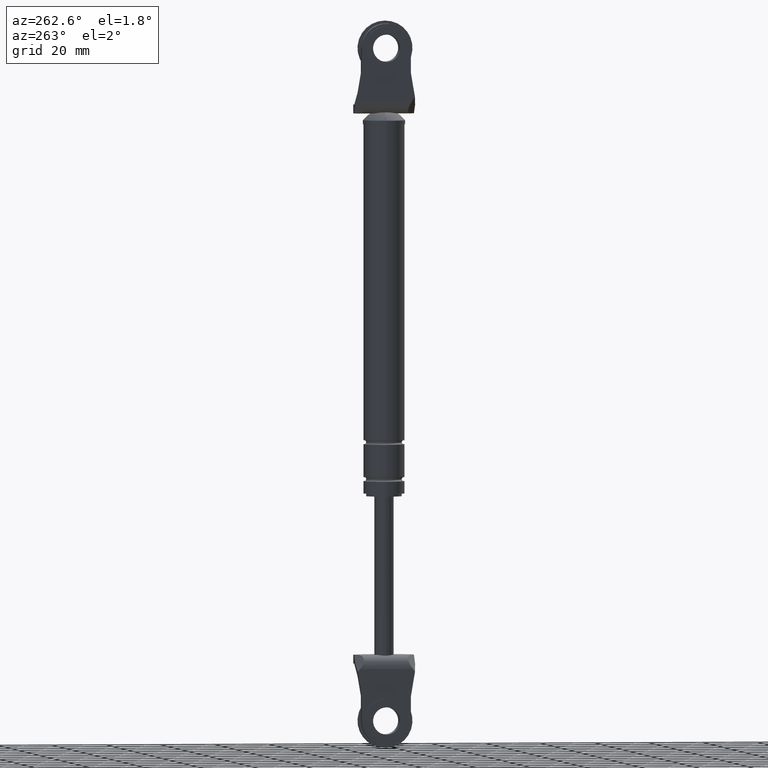
[diagram: clean part render]
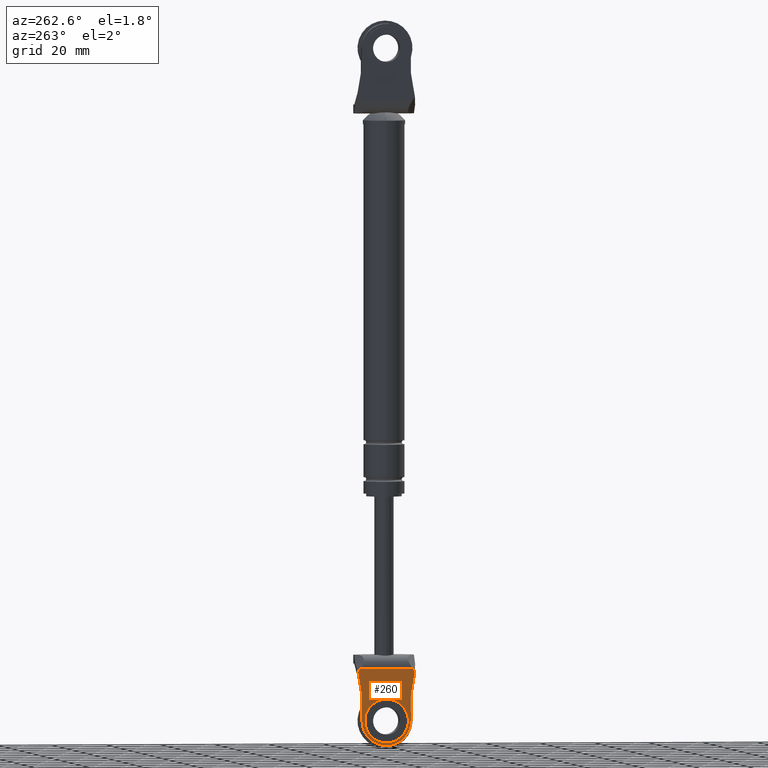
[diagram: same view with one face highlighted and labeled with its STEP entity id]
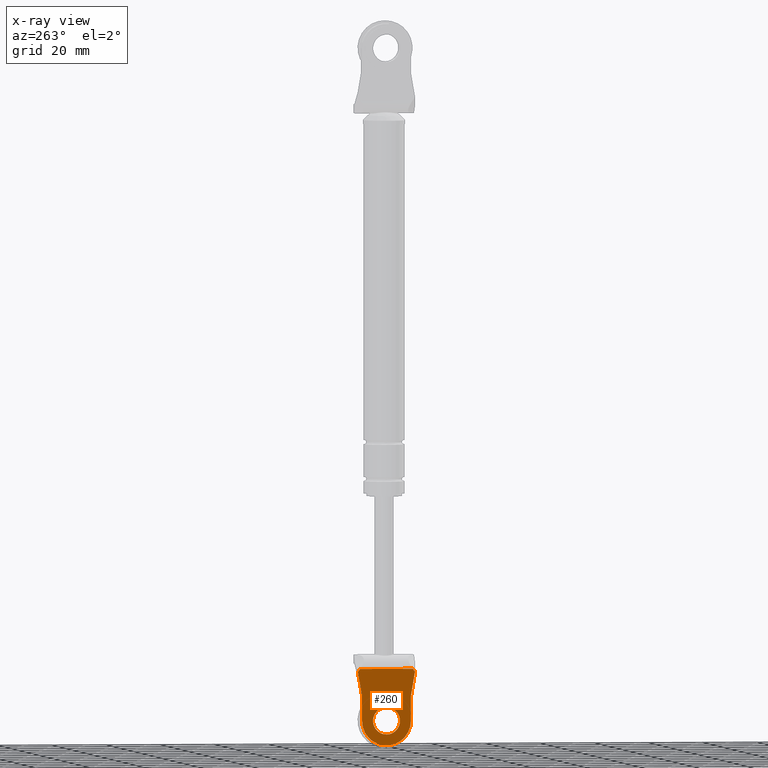
[diagram: x-ray of the same camera — body ghosted, the highlighted face saturated]
A machine part, auxiliary view. The second image highlights one B-rep face of the part: STEP entity #260.
The next image is the same camera in x-ray: the body ghosted, the highlighted face saturated — about 0% of this face is hidden behind the body in this view.
In plain terms, the highlighted planar face has unit normal (1, 0, 0).
Its self-contained STEP definition (entity closure, byte-faithful):
#260=ADVANCED_FACE('',(#857,#858),#856,.F.);
#856=PLANE('',#1477);
#857=FACE_OUTER_BOUND('',#1478,.T.);
#858=FACE_BOUND('',#1479,.T.);
#1474=CARTESIAN_POINT('',(-9.41369854265E-016,1.26204346411E+001,2.24200000000E+002));
#1475=DIRECTION('',(1.00000000000E+000,0.00000000000E+000,-0.00000000000E+000));
#1476=DIRECTION('',(0.00000000000E+000,0.00000000000E+000,1.00000000000E+000));
#1477=AXIS2_PLACEMENT_3D('',#1474,#1475,#1476);
#1478=EDGE_LOOP('',(#1868,#1869,#1870,#1871,#1872,#1873,#1874,#1875));
#1479=EDGE_LOOP('',(#1876,#1877));
#1868=ORIENTED_EDGE('',*,*,#2132,.F.);
#1869=ORIENTED_EDGE('',*,*,#2133,.F.);
#1870=ORIENTED_EDGE('',*,*,#2134,.F.);
#1871=ORIENTED_EDGE('',*,*,#2135,.T.);
#1872=ORIENTED_EDGE('',*,*,#2136,.F.);
#1873=ORIENTED_EDGE('',*,*,#2137,.F.);
#1874=ORIENTED_EDGE('',*,*,#2138,.T.);
#1875=ORIENTED_EDGE('',*,*,#2139,.T.);
#1876=ORIENTED_EDGE('',*,*,#2140,.F.);
#1877=ORIENTED_EDGE('',*,*,#2141,.F.);
#2132=EDGE_CURVE('',#3104,#3105,#3106,.T.);
#2133=EDGE_CURVE('',#3112,#3104,#3113,.T.);
#2134=EDGE_CURVE('',#3119,#3112,#3120,.T.);
#2135=EDGE_CURVE('',#3119,#3126,#3127,.T.);
#2136=EDGE_CURVE('',#3133,#3126,#3134,.T.);
#2137=EDGE_CURVE('',#3140,#3133,#3141,.T.);
#2138=EDGE_CURVE('',#3140,#3147,#3148,.T.);
#2139=EDGE_CURVE('',#3147,#3105,#3154,.T.);
#2140=EDGE_CURVE('',#3160,#3161,#3162,.T.);
#2141=EDGE_CURVE('',#3161,#3160,#3168,.T.);
#3104=VERTEX_POINT('',#4098);
#3105=VERTEX_POINT('',#4099);
#3106=LINE('',#4100,#4101);
#3112=VERTEX_POINT('',#4103);
#3113=LINE('',#4104,#4105);
#3119=VERTEX_POINT('',#4107);
#3120=LINE('',#4108,#4109);
#3126=VERTEX_POINT('',#4111);
#3127=CIRCLE('',#4115,9.00000000000E+000);
#3133=VERTEX_POINT('',#4116);
#3134=LINE('',#4117,#4118);
#3140=VERTEX_POINT('',#4120);
#3141=LINE('',#4121,#4122);
#3147=VERTEX_POINT('',#4124);
#3148=LINE('',#4125,#4126);
#3154=LINE('',#4128,#4129);
#3160=VERTEX_POINT('',#4131);
#3161=VERTEX_POINT('',#4132);
#3162=CIRCLE('',#4136,5.00000000000E+000);
#3168=CIRCLE('',#4140,5.00000000000E+000);
#4098=CARTESIAN_POINT('',(-1.10800257858E-013,-1.05170288675E+001,2.28049529682E+002));
#4099=CARTESIAN_POINT('',(-9.41369854265E-016,-9.73775804695E+000,2.27000000000E+002));
#4100=CARTESIAN_POINT('',(-9.41369854265E-016,-1.05170288675E+001,2.28049529682E+002));
#4101=VECTOR('',#4102,1.30720142448E+000);
#4102=DIRECTION('',(0.00000000000E+000,5.96136759022E-001,-8.02882908364E-001));
#4103=CARTESIAN_POINT('',(2.22044604925E-016,-9.00000000000E+000,2.37000000000E+002));
#4104=CARTESIAN_POINT('',(-9.41369854265E-016,-9.00000000000E+000,2.37000000000E+002));
#4105=VECTOR('',#4106,9.07812180505E+000);
#4106=DIRECTION('',(0.00000000000E+000,-1.67108230108E-001,-9.85938557634E-001));
#4107=CARTESIAN_POINT('',(2.22044604925E-016,-9.00000000000E+000,2.46000000000E+002));
#4108=CARTESIAN_POINT('',(-9.41369854265E-016,-9.00000000000E+000,2.46000000000E+002));
#4109=VECTOR('',#4110,9.00000000000E+000);
#4110=DIRECTION('',(0.00000000000E+000,0.00000000000E+000,-1.00000000000E+000));
#4111=CARTESIAN_POINT('',(2.22044604925E-016,9.00000000000E+000,2.46000000000E+002));
#4112=CARTESIAN_POINT('',(2.22044604925E-016,-2.47972407408E-014,2.46000000000E+002));
#4113=DIRECTION('',(-1.00000000000E+000,-0.00000000000E+000,0.00000000000E+000));
#4114=DIRECTION('',(-0.00000000000E+000,-0.00000000000E+000,-1.00000000000E+000));
#4115=AXIS2_PLACEMENT_3D('',#4112,#4113,#4114);
#4116=CARTESIAN_POINT('',(2.22044604925E-016,9.00000000000E+000,2.37000000000E+002));
#4117=CARTESIAN_POINT('',(-9.41369854265E-016,9.00000000000E+000,2.37000000000E+002));
#4118=VECTOR('',#4119,9.00000000000E+000);
#4119=DIRECTION('',(0.00000000000E+000,0.00000000000E+000,1.00000000000E+000));
#4120=CARTESIAN_POINT('',(-9.41369854265E-016,1.05170288675E+001,2.28049529681E+002));
#4121=CARTESIAN_POINT('',(-9.41369854265E-016,1.05170288675E+001,2.28049529681E+002));
#4122=VECTOR('',#4123,9.07812180506E+000);
#4123=DIRECTION('',(0.00000000000E+000,-1.67108230108E-001,9.85938557634E-001));
#4124=CARTESIAN_POINT('',(-6.45317133063E-016,9.73775804694E+000,2.27000000000E+002));
#4125=CARTESIAN_POINT('',(-9.41369854265E-016,1.05170288675E+001,2.28049529681E+002));
#4126=VECTOR('',#4127,1.30720142448E+000);
#4127=DIRECTION('',(0.00000000000E+000,-5.96136759022E-001,-8.02882908364E-001));
#4128=CARTESIAN_POINT('',(-9.41369854265E-016,9.73775804694E+000,2.27000000000E+002));
#4129=VECTOR('',#4130,1.94755160939E+001);
#4130=DIRECTION('',(0.00000000000E+000,-1.00000000000E+000,0.00000000000E+000));
#4131=CARTESIAN_POINT('',(2.22044604925E-016,-2.54611146981E-014,2.41000000000E+002));
#4132=CARTESIAN_POINT('',(2.22044604925E-016,-2.47972407408E-014,2.51000000000E+002));
#4133=CARTESIAN_POINT('',(2.22044604925E-016,-2.47972407408E-014,2.46000000000E+002));
#4134=DIRECTION('',(-1.00000000000E+000,0.00000000000E+000,0.00000000000E+000));
#4135=DIRECTION('',(0.00000000000E+000,1.22460635382E-016,1.00000000000E+000));
#4136=AXIS2_PLACEMENT_3D('',#4133,#4134,#4135);
#4137=CARTESIAN_POINT('',(2.22044604925E-016,-2.47972407408E-014,2.46000000000E+002));
#4138=DIRECTION('',(-1.00000000000E+000,0.00000000000E+000,0.00000000000E+000));
#4139=DIRECTION('',(0.00000000000E+000,1.22460635382E-016,1.00000000000E+000));
#4140=AXIS2_PLACEMENT_3D('',#4137,#4138,#4139);